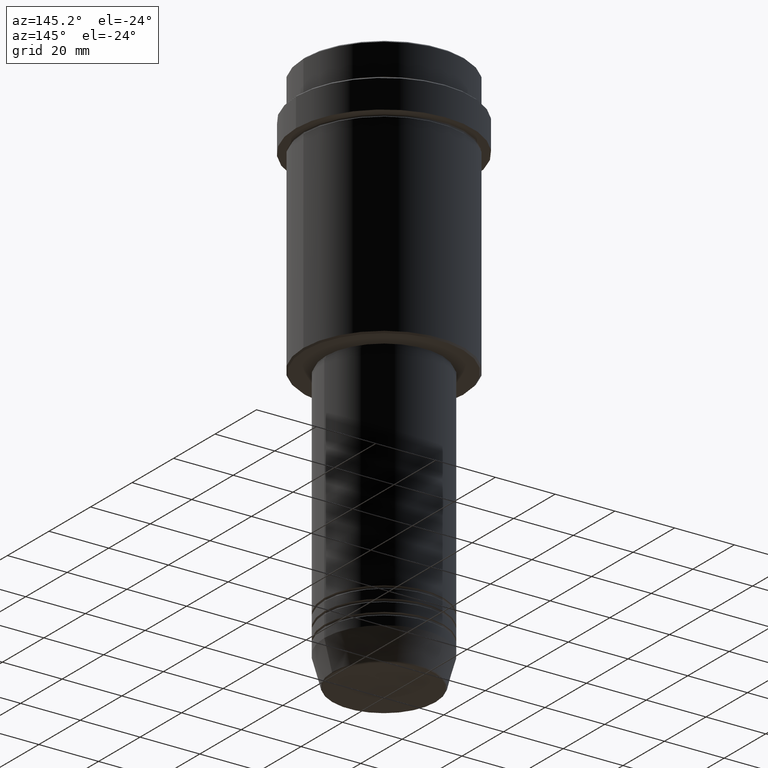
[diagram: clean part render]
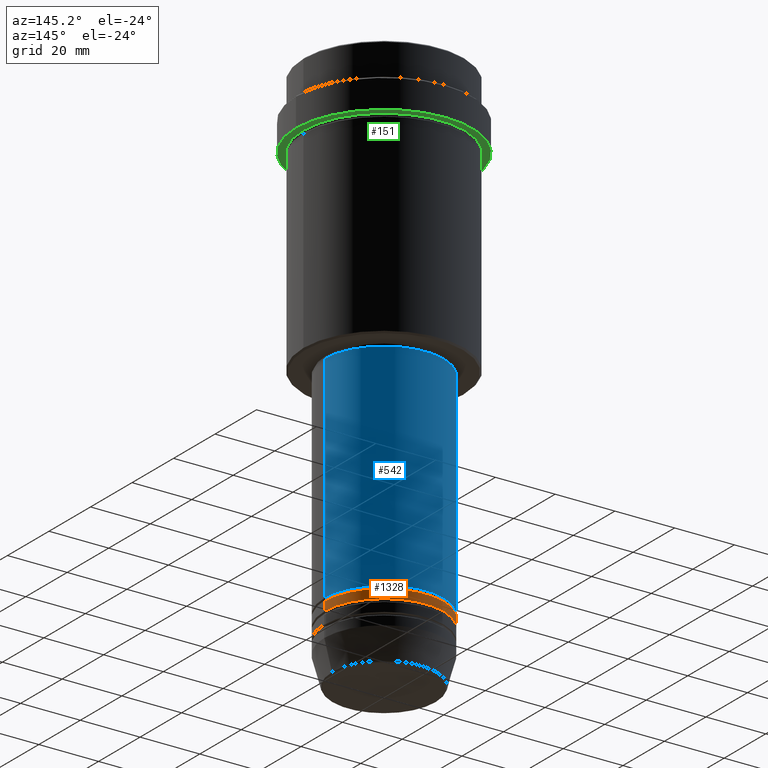
[diagram: same view with three faces highlighted in distinct colors, each labeled with its STEP entity id]
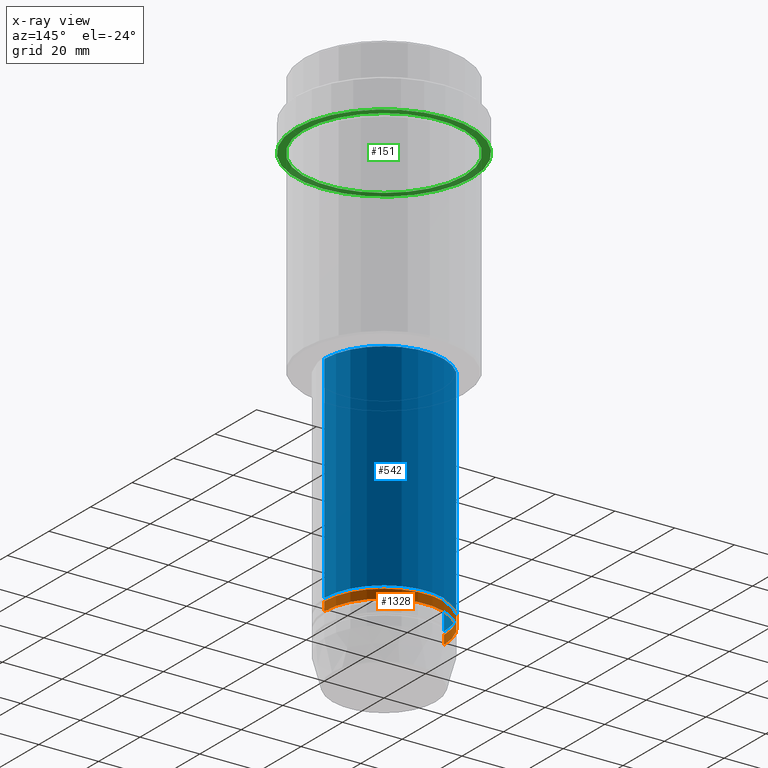
[diagram: x-ray of the same camera — body ghosted, the three highlighted faces saturated]
A machine part, auxiliary view with three faces highlighted in distinct colors.
The next image is the same camera in x-ray (body ghosted, the three faces saturated) — at least one of them is partly hidden behind the body in this view.
Their STEP definitions:

[orange] entity #1328 — the highlighted cylindrical surface (partial cylindrical patch) has radius 20 mm, axis along (-0, -0, 1).
#175 = DIRECTION ( 'NONE',  ( 1.000000000000000000, 0.000000000000000000, 0.000000000000000000 ) ) ;
#185 = AXIS2_PLACEMENT_3D ( 'NONE', #472, #339, #1221 ) ;
#216 = CARTESIAN_POINT ( 'NONE',  ( 0.000000000000000000, 0.000000000000000000, -164.9999999999998579 ) ) ;
#245 = AXIS2_PLACEMENT_3D ( 'NONE', #1161, #1032, #175 ) ;
#292 = CIRCLE ( 'NONE', #245, 20.00000000000000000 ) ;
#315 = AXIS2_PLACEMENT_3D ( 'NONE', #216, #1091, #547 ) ;
#330 = CARTESIAN_POINT ( 'NONE',  ( 20.00000000000000000, 0.000000000000000000, -164.9999999999998579 ) ) ;
#339 = DIRECTION ( 'NONE',  ( -0.000000000000000000, -0.000000000000000000, 1.000000000000000000 ) ) ;
#388 = VECTOR ( 'NONE', #954, 1000.000000000000000 ) ;
#408 = ORIENTED_EDGE ( 'NONE', *, *, #774, .F. ) ;
#468 = VERTEX_POINT ( 'NONE', #1183 ) ;
#472 = CARTESIAN_POINT ( 'NONE',  ( 0.000000000000000000, 0.000000000000000000, 0.000000000000000000 ) ) ;
#478 = VECTOR ( 'NONE', #1125, 1000.000000000000000 ) ;
#522 = EDGE_CURVE ( 'NONE', #468, #1242, #1324, .T. ) ;
#547 = DIRECTION ( 'NONE',  ( 1.000000000000000000, 0.000000000000000000, 0.000000000000000000 ) ) ;
#559 = CYLINDRICAL_SURFACE ( 'NONE', #185, 20.00000000000000000 ) ;
#586 = FACE_OUTER_BOUND ( 'NONE', #1124, .T. ) ;
#655 = CARTESIAN_POINT ( 'NONE',  ( 20.00000000000000000, 0.000000000000000000, -161.9999999999998579 ) ) ;
#703 = ORIENTED_EDGE ( 'NONE', *, *, #708, .F. ) ;
#705 = LINE ( 'NONE', #822, #388 ) ;
#708 = EDGE_CURVE ( 'NONE', #1257, #1153, #705, .T. ) ;
#774 = EDGE_CURVE ( 'NONE', #1153, #1242, #292, .T. ) ;
#822 = CARTESIAN_POINT ( 'NONE',  ( 20.00000000000000000, 0.000000000000000000, 0.000000000000000000 ) ) ;
#954 = DIRECTION ( 'NONE',  ( -0.000000000000000000, -0.000000000000000000, 1.000000000000000000 ) ) ;
#1032 = DIRECTION ( 'NONE',  ( -0.000000000000000000, -0.000000000000000000, 1.000000000000000000 ) ) ;
#1033 = CIRCLE ( 'NONE', #315, 20.00000000000000000 ) ;
#1091 = DIRECTION ( 'NONE',  ( -0.000000000000000000, -0.000000000000000000, 1.000000000000000000 ) ) ;
#1117 = CARTESIAN_POINT ( 'NONE',  ( -20.00000000000000000, 2.449293598294706513E-15, 0.000000000000000000 ) ) ;
#1124 = EDGE_LOOP ( 'NONE', ( #1290, #1224, #408, #703 ) ) ;
#1125 = DIRECTION ( 'NONE',  ( -0.000000000000000000, -0.000000000000000000, 1.000000000000000000 ) ) ;
#1153 = VERTEX_POINT ( 'NONE', #655 ) ;
#1161 = CARTESIAN_POINT ( 'NONE',  ( 0.000000000000000000, 0.000000000000000000, -161.9999999999998579 ) ) ;
#1183 = CARTESIAN_POINT ( 'NONE',  ( -20.00000000000000000, 2.449293598294706513E-15, -164.9999999999998579 ) ) ;
#1201 = EDGE_CURVE ( 'NONE', #1257, #468, #1033, .T. ) ;
#1221 = DIRECTION ( 'NONE',  ( 1.000000000000000000, 0.000000000000000000, 0.000000000000000000 ) ) ;
#1224 = ORIENTED_EDGE ( 'NONE', *, *, #522, .T. ) ;
#1242 = VERTEX_POINT ( 'NONE', #1340 ) ;
#1257 = VERTEX_POINT ( 'NONE', #330 ) ;
#1290 = ORIENTED_EDGE ( 'NONE', *, *, #1201, .T. ) ;
#1324 = LINE ( 'NONE', #1117, #478 ) ;
#1328 = ADVANCED_FACE ( 'NONE', ( #586 ), #559, .T. ) ;
#1340 = CARTESIAN_POINT ( 'NONE',  ( -20.00000000000000000, 2.449293598294706513E-15, -161.9999999999998579 ) ) ;

[blue] entity #542 — the highlighted cylindrical surface (partial cylindrical patch) has radius 20 mm, axis along (-0, -0, 1).
#122 = DIRECTION ( 'NONE',  ( -0.000000000000000000, -0.000000000000000000, 1.000000000000000000 ) ) ;
#124 = DIRECTION ( 'NONE',  ( -0.000000000000000000, -0.000000000000000000, 1.000000000000000000 ) ) ;
#138 = LINE ( 'NONE', #1329, #918 ) ;
#159 = VERTEX_POINT ( 'NONE', #230 ) ;
#181 = ORIENTED_EDGE ( 'NONE', *, *, #890, .T. ) ;
#204 = AXIS2_PLACEMENT_3D ( 'NONE', #917, #122, #1347 ) ;
#221 = ORIENTED_EDGE ( 'NONE', *, *, #1361, .T. ) ;
#230 = CARTESIAN_POINT ( 'NONE',  ( -20.00000000000000000, 2.449293598294706513E-15, -89.00000000000000000 ) ) ;
#241 = DIRECTION ( 'NONE',  ( -0.000000000000000000, -0.000000000000000000, 1.000000000000000000 ) ) ;
#272 = CIRCLE ( 'NONE', #1078, 20.00000000000000000 ) ;
#307 = EDGE_LOOP ( 'NONE', ( #221, #181, #865, #916 ) ) ;
#366 = CIRCLE ( 'NONE', #897, 20.00000000000000000 ) ;
#371 = CARTESIAN_POINT ( 'NONE',  ( 20.00000000000000000, 0.000000000000000000, 0.000000000000000000 ) ) ;
#451 = VECTOR ( 'NONE', #675, 1000.000000000000000 ) ;
#539 = CARTESIAN_POINT ( 'NONE',  ( 0.000000000000000000, 0.000000000000000000, -89.00000000000000000 ) ) ;
#542 = ADVANCED_FACE ( 'NONE', ( #1237 ), #815, .T. ) ;
#566 = DIRECTION ( 'NONE',  ( 1.000000000000000000, 0.000000000000000000, 0.000000000000000000 ) ) ;
#606 = EDGE_CURVE ( 'NONE', #1087, #821, #1219, .T. ) ;
#611 = CARTESIAN_POINT ( 'NONE',  ( -20.00000000000000000, 2.449293598294706513E-15, -160.9999999999998579 ) ) ;
#675 = DIRECTION ( 'NONE',  ( -0.000000000000000000, -0.000000000000000000, 1.000000000000000000 ) ) ;
#709 = CARTESIAN_POINT ( 'NONE',  ( 20.00000000000000000, 0.000000000000000000, -89.00000000000000000 ) ) ;
#815 = CYLINDRICAL_SURFACE ( 'NONE', #204, 20.00000000000000000 ) ;
#821 = VERTEX_POINT ( 'NONE', #709 ) ;
#865 = ORIENTED_EDGE ( 'NONE', *, *, #1133, .F. ) ;
#869 = DIRECTION ( 'NONE',  ( 1.000000000000000000, 0.000000000000000000, 0.000000000000000000 ) ) ;
#890 = EDGE_CURVE ( 'NONE', #1063, #159, #138, .T. ) ;
#897 = AXIS2_PLACEMENT_3D ( 'NONE', #1111, #124, #566 ) ;
#916 = ORIENTED_EDGE ( 'NONE', *, *, #606, .F. ) ;
#917 = CARTESIAN_POINT ( 'NONE',  ( 0.000000000000000000, 0.000000000000000000, 0.000000000000000000 ) ) ;
#918 = VECTOR ( 'NONE', #241, 1000.000000000000000 ) ;
#1063 = VERTEX_POINT ( 'NONE', #611 ) ;
#1078 = AXIS2_PLACEMENT_3D ( 'NONE', #539, #1399, #869 ) ;
#1082 = CARTESIAN_POINT ( 'NONE',  ( 20.00000000000000000, 0.000000000000000000, -160.9999999999998579 ) ) ;
#1087 = VERTEX_POINT ( 'NONE', #1082 ) ;
#1111 = CARTESIAN_POINT ( 'NONE',  ( 0.000000000000000000, 0.000000000000000000, -160.9999999999998579 ) ) ;
#1133 = EDGE_CURVE ( 'NONE', #821, #159, #272, .T. ) ;
#1219 = LINE ( 'NONE', #371, #451 ) ;
#1237 = FACE_OUTER_BOUND ( 'NONE', #307, .T. ) ;
#1329 = CARTESIAN_POINT ( 'NONE',  ( -20.00000000000000000, 2.449293598294706513E-15, 0.000000000000000000 ) ) ;
#1347 = DIRECTION ( 'NONE',  ( 1.000000000000000000, 0.000000000000000000, 0.000000000000000000 ) ) ;
#1361 = EDGE_CURVE ( 'NONE', #1087, #1063, #366, .T. ) ;
#1399 = DIRECTION ( 'NONE',  ( -0.000000000000000000, -0.000000000000000000, 1.000000000000000000 ) ) ;

[green] entity #151 — the highlighted planar face has unit normal (0, 0, -1).
#10 = EDGE_LOOP ( 'NONE', ( #449, #791 ) ) ;
#14 = CARTESIAN_POINT ( 'NONE',  ( 0.000000000000000000, 29.49999999999999645, -21.99999999999999289 ) ) ;
#37 = DIRECTION ( 'NONE',  ( -1.000000000000000000, 0.000000000000000000, -0.000000000000000000 ) ) ;
#42 = AXIS2_PLACEMENT_3D ( 'NONE', #447, #1105, #226 ) ;
#46 = DIRECTION ( 'NONE',  ( 1.000000000000000000, 0.000000000000000000, 0.000000000000000000 ) ) ;
#74 = CARTESIAN_POINT ( 'NONE',  ( -29.49999999999999645, 3.612708057484690815E-15, -21.99999999999999289 ) ) ;
#79 = VERTEX_POINT ( 'NONE', #1381 ) ;
#151 = ADVANCED_FACE ( 'NONE', ( #1139, #155 ), #800, .T. ) ;
#155 = FACE_OUTER_BOUND ( 'NONE', #10, .T. ) ;
#197 = DIRECTION ( 'NONE',  ( -0.000000000000000000, -0.000000000000000000, 1.000000000000000000 ) ) ;
#226 = DIRECTION ( 'NONE',  ( 1.000000000000000000, 0.000000000000000000, 0.000000000000000000 ) ) ;
#260 = ORIENTED_EDGE ( 'NONE', *, *, #462, .T. ) ;
#278 = DIRECTION ( 'NONE',  ( -0.000000000000000000, -0.000000000000000000, 1.000000000000000000 ) ) ;
#301 = ORIENTED_EDGE ( 'NONE', *, *, #381, .T. ) ;
#317 = CARTESIAN_POINT ( 'NONE',  ( 0.000000000000000000, 0.000000000000000000, -21.99999999999999289 ) ) ;
#326 = VERTEX_POINT ( 'NONE', #74 ) ;
#350 = CARTESIAN_POINT ( 'NONE',  ( -26.99999999999999645, 0.000000000000000000, -21.99999999999999289 ) ) ;
#363 = DIRECTION ( 'NONE',  ( 0.000000000000000000, 0.000000000000000000, -1.000000000000000000 ) ) ;
#381 = EDGE_CURVE ( 'NONE', #841, #79, #1123, .T. ) ;
#391 = AXIS2_PLACEMENT_3D ( 'NONE', #14, #363, #37 ) ;
#395 = AXIS2_PLACEMENT_3D ( 'NONE', #969, #197, #750 ) ;
#447 = CARTESIAN_POINT ( 'NONE',  ( 0.000000000000000000, 0.000000000000000000, -21.99999999999999289 ) ) ;
#449 = ORIENTED_EDGE ( 'NONE', *, *, #1272, .F. ) ;
#462 = EDGE_CURVE ( 'NONE', #79, #841, #1227, .T. ) ;
#526 = DIRECTION ( 'NONE',  ( -0.000000000000000000, -0.000000000000000000, 1.000000000000000000 ) ) ;
#564 = CARTESIAN_POINT ( 'NONE',  ( 0.000000000000000000, 0.000000000000000000, -21.99999999999999289 ) ) ;
#594 = EDGE_LOOP ( 'NONE', ( #301, #260 ) ) ;
#630 = CIRCLE ( 'NONE', #42, 29.49999999999999645 ) ;
#664 = EDGE_CURVE ( 'NONE', #326, #790, #1387, .T. ) ;
#750 = DIRECTION ( 'NONE',  ( -1.000000000000000000, 0.000000000000000000, 0.000000000000000000 ) ) ;
#790 = VERTEX_POINT ( 'NONE', #941 ) ;
#791 = ORIENTED_EDGE ( 'NONE', *, *, #664, .F. ) ;
#800 = PLANE ( 'NONE',  #391 ) ;
#841 = VERTEX_POINT ( 'NONE', #350 ) ;
#878 = DIRECTION ( 'NONE',  ( -1.000000000000000000, 0.000000000000000000, 0.000000000000000000 ) ) ;
#941 = CARTESIAN_POINT ( 'NONE',  ( 29.49999999999999645, 0.000000000000000000, -21.99999999999999289 ) ) ;
#969 = CARTESIAN_POINT ( 'NONE',  ( 0.000000000000000000, 0.000000000000000000, -21.99999999999999289 ) ) ;
#1105 = DIRECTION ( 'NONE',  ( -0.000000000000000000, -0.000000000000000000, 1.000000000000000000 ) ) ;
#1123 = CIRCLE ( 'NONE', #1321, 26.99999999999999645 ) ;
#1139 = FACE_BOUND ( 'NONE', #594, .T. ) ;
#1143 = AXIS2_PLACEMENT_3D ( 'NONE', #564, #278, #46 ) ;
#1227 = CIRCLE ( 'NONE', #395, 26.99999999999999645 ) ;
#1272 = EDGE_CURVE ( 'NONE', #790, #326, #630, .T. ) ;
#1321 = AXIS2_PLACEMENT_3D ( 'NONE', #317, #526, #878 ) ;
#1381 = CARTESIAN_POINT ( 'NONE',  ( 26.99999999999999645, 3.306546357697853339E-15, -21.99999999999999289 ) ) ;
#1387 = CIRCLE ( 'NONE', #1143, 29.49999999999999645 ) ;